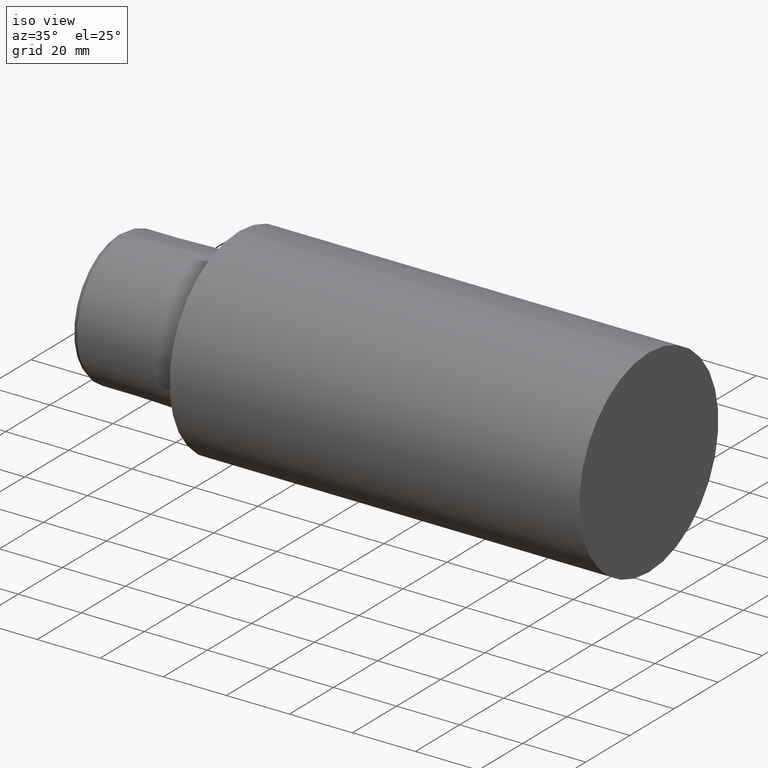
[diagram: clean part render]
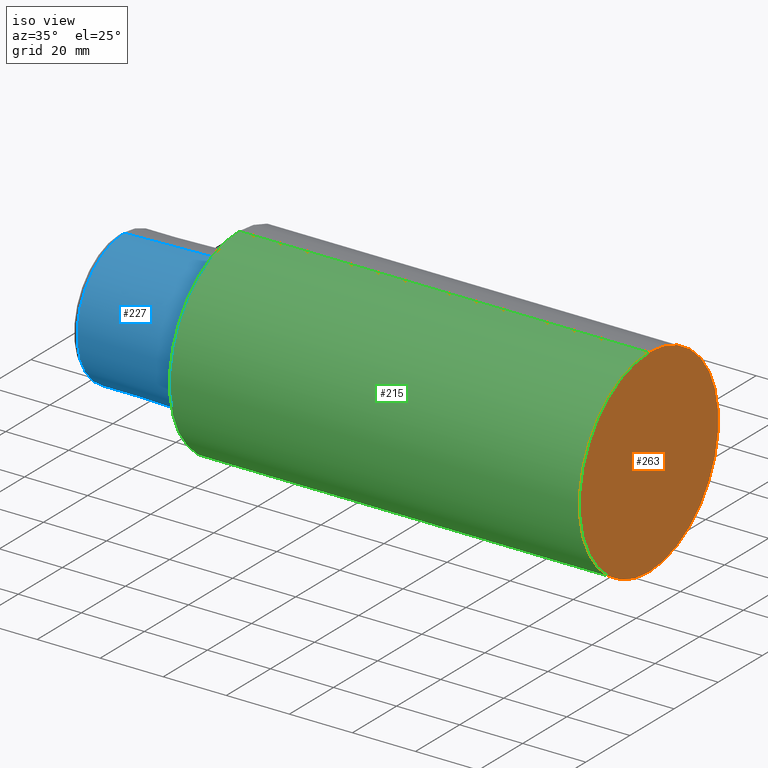
[diagram: same view with three faces highlighted in distinct colors, each labeled with its STEP entity id]
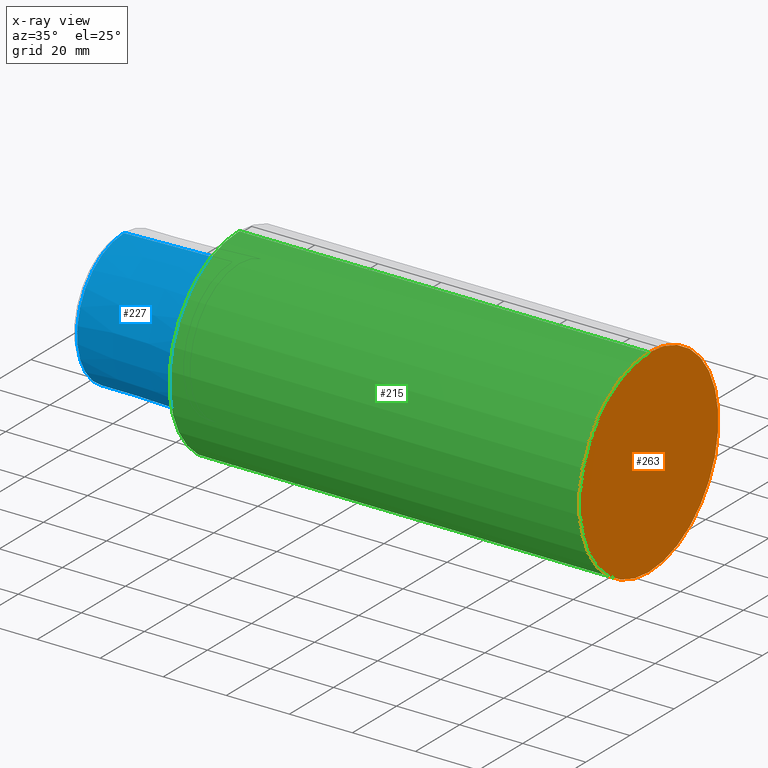
[diagram: x-ray of the same camera — body ghosted, the three highlighted faces saturated]
A machine part, iso view with three faces highlighted in distinct colors.
The next image is the same camera in x-ray (body ghosted, the three faces saturated) — at least one of them is partly hidden behind the body in this view.
Their STEP definitions:

[orange] entity #263 — the highlighted planar face has unit normal (-1, 0, 0).
#5 = DIRECTION ( 'NONE',  ( -1.000000000000000000, 0.000000000000000000, 0.000000000000000000 ) ) ;
#7 = FACE_OUTER_BOUND ( 'NONE', #159, .T. ) ;
#25 = CARTESIAN_POINT ( 'NONE',  ( 129.9999998657614242, 0.000000000000000000, 0.000000000000000000 ) ) ;
#32 = DIRECTION ( 'NONE',  ( -1.000000000000000000, 0.000000000000000000, 0.000000000000000000 ) ) ;
#49 = CIRCLE ( 'NONE', #111, 31.49999997070834823 ) ;
#68 = DIRECTION ( 'NONE',  ( 0.000000000000000000, 0.000000000000000000, 1.000000000000000000 ) ) ;
#75 = ORIENTED_EDGE ( 'NONE', *, *, #151, .F. ) ;
#77 = VERTEX_POINT ( 'NONE', #104 ) ;
#87 = CIRCLE ( 'NONE', #136, 31.49999997070834823 ) ;
#93 = DIRECTION ( 'NONE',  ( 0.000000000000000000, 0.000000000000000000, 1.000000000000000000 ) ) ;
#104 = CARTESIAN_POINT ( 'NONE',  ( 129.9999998657614242, 3.857637413726965239E-15, -31.49999997070834823 ) ) ;
#111 = AXIS2_PLACEMENT_3D ( 'NONE', #315, #32, #93 ) ;
#136 = AXIS2_PLACEMENT_3D ( 'NONE', #25, #327, #220 ) ;
#151 = EDGE_CURVE ( 'NONE', #160, #77, #87, .T. ) ;
#158 = AXIS2_PLACEMENT_3D ( 'NONE', #197, #5, #68 ) ;
#159 = EDGE_LOOP ( 'NONE', ( #75, #212 ) ) ;
#160 = VERTEX_POINT ( 'NONE', #325 ) ;
#197 = CARTESIAN_POINT ( 'NONE',  ( 129.9999998657612252, 0.000000000000000000, 0.000000000000000000 ) ) ;
#212 = ORIENTED_EDGE ( 'NONE', *, *, #309, .F. ) ;
#220 = DIRECTION ( 'NONE',  ( 0.000000000000000000, 0.000000000000000000, 1.000000000000000000 ) ) ;
#263 = ADVANCED_FACE ( 'NONE', ( #7 ), #339, .F. ) ;
#309 = EDGE_CURVE ( 'NONE', #77, #160, #49, .T. ) ;
#315 = CARTESIAN_POINT ( 'NONE',  ( 129.9999998657614242, 0.000000000000000000, 0.000000000000000000 ) ) ;
#325 = CARTESIAN_POINT ( 'NONE',  ( 129.9999998657614242, 0.000000000000000000, 31.49999997070834823 ) ) ;
#327 = DIRECTION ( 'NONE',  ( -1.000000000000000000, 0.000000000000000000, 0.000000000000000000 ) ) ;
#339 = PLANE ( 'NONE',  #158 ) ;

[blue] entity #227 — the highlighted conical surface has half-angle 1.432 deg.
#16 = VERTEX_POINT ( 'NONE', #222 ) ;
#21 = CARTESIAN_POINT ( 'NONE',  ( -2.199999999394708361, 2.702891790757786195E-15, 22.07078639032614120 ) ) ;
#29 = DIRECTION ( 'NONE',  ( 0.000000000000000000, 0.000000000000000000, 1.000000000000000000 ) ) ;
#37 = CARTESIAN_POINT ( 'NONE',  ( -2.199999999394708361, 0.000000000000000000, -22.07078639032614120 ) ) ;
#50 = VERTEX_POINT ( 'NONE', #83 ) ;
#62 = CARTESIAN_POINT ( 'NONE',  ( -2.199999999394708361, 0.000000000000000000, 0.000000000000000000 ) ) ;
#65 = LINE ( 'NONE', #37, #280 ) ;
#70 = EDGE_CURVE ( 'NONE', #208, #16, #218, .T. ) ;
#83 = CARTESIAN_POINT ( 'NONE',  ( -36.49999996440870120, 0.000000000000000000, -21.21334400120073482 ) ) ;
#85 = CARTESIAN_POINT ( 'NONE',  ( -2.199999999394708361, 0.000000000000000000, 0.000000000000000000 ) ) ;
#86 = FACE_OUTER_BOUND ( 'NONE', #348, .T. ) ;
#103 = ORIENTED_EDGE ( 'NONE', *, *, #333, .F. ) ;
#121 = DIRECTION ( 'NONE',  ( 1.000000000000000000, 0.000000000000000000, 0.000000000000000000 ) ) ;
#145 = DIRECTION ( 'NONE',  ( 0.000000000000000000, 0.000000000000000000, 1.000000000000000000 ) ) ;
#163 = DIRECTION ( 'NONE',  ( -1.000000000000000000, 0.000000000000000000, 0.000000000000000000 ) ) ;
#193 = AXIS2_PLACEMENT_3D ( 'NONE', #314, #335, #145 ) ;
#206 = CARTESIAN_POINT ( 'NONE',  ( -2.199999999394708361, 2.702891790757786195E-15, -22.07078639032614120 ) ) ;
#208 = VERTEX_POINT ( 'NONE', #206 ) ;
#218 = CIRCLE ( 'NONE', #264, 22.07078639032614120 ) ;
#219 = CONICAL_SURFACE ( 'NONE', #324, 22.07078639032614120, 0.02499311507610003230 ) ;
#222 = CARTESIAN_POINT ( 'NONE',  ( -2.199999999394708361, 0.000000000000000000, 22.07078639032614120 ) ) ;
#224 = VECTOR ( 'NONE', #296, 1000.000000000000114 ) ;
#227 = ADVANCED_FACE ( 'NONE', ( #86 ), #219, .T. ) ;
#244 = ORIENTED_EDGE ( 'NONE', *, *, #70, .T. ) ;
#253 = VERTEX_POINT ( 'NONE', #332 ) ;
#264 = AXIS2_PLACEMENT_3D ( 'NONE', #85, #163, #29 ) ;
#270 = ORIENTED_EDGE ( 'NONE', *, *, #316, .T. ) ;
#273 = ORIENTED_EDGE ( 'NONE', *, *, #352, .F. ) ;
#280 = VECTOR ( 'NONE', #313, 1000.000000000000114 ) ;
#289 = DIRECTION ( 'NONE',  ( 0.000000000000000000, 0.000000000000000000, -1.000000000000000000 ) ) ;
#296 = DIRECTION ( 'NONE',  ( 0.9996876883571774730, 3.060455192797006293E-18, 0.02499051314164881313 ) ) ;
#299 = LINE ( 'NONE', #21, #224 ) ;
#313 = DIRECTION ( 'NONE',  ( 0.9996876883571774730, 0.000000000000000000, -0.02499051314164881313 ) ) ;
#314 = CARTESIAN_POINT ( 'NONE',  ( -36.49999996440870120, 0.000000000000000000, 0.000000000000000000 ) ) ;
#316 = EDGE_CURVE ( 'NONE', #50, #208, #65, .T. ) ;
#324 = AXIS2_PLACEMENT_3D ( 'NONE', #62, #121, #289 ) ;
#332 = CARTESIAN_POINT ( 'NONE',  ( -36.49999996440870120, 2.650388586893000642E-15, 21.21334400120073482 ) ) ;
#333 = EDGE_CURVE ( 'NONE', #50, #253, #346, .T. ) ;
#335 = DIRECTION ( 'NONE',  ( -1.000000000000000000, 0.000000000000000000, 0.000000000000000000 ) ) ;
#346 = CIRCLE ( 'NONE', #193, 21.21334400120073482 ) ;
#348 = EDGE_LOOP ( 'NONE', ( #273, #103, #270, #244 ) ) ;
#352 = EDGE_CURVE ( 'NONE', #253, #16, #299, .T. ) ;

[green] entity #215 — the highlighted cylindrical surface (partial cylindrical patch) has radius 31.5 mm, axis along (-1, 0, 0).
#1 = CARTESIAN_POINT ( 'NONE',  ( -1.638711037459195739E-09, 3.857637413726965239E-15, -31.49999997070834823 ) ) ;
#14 = AXIS2_PLACEMENT_3D ( 'NONE', #256, #90, #88 ) ;
#18 = VERTEX_POINT ( 'NONE', #55 ) ;
#32 = DIRECTION ( 'NONE',  ( -1.000000000000000000, 0.000000000000000000, 0.000000000000000000 ) ) ;
#43 = EDGE_CURVE ( 'NONE', #77, #72, #53, .T. ) ;
#49 = CIRCLE ( 'NONE', #111, 31.49999997070834823 ) ;
#53 = LINE ( 'NONE', #225, #113 ) ;
#55 = CARTESIAN_POINT ( 'NONE',  ( -1.638711037459195739E-09, 0.000000000000000000, 31.49999997070834823 ) ) ;
#57 = EDGE_CURVE ( 'NONE', #72, #18, #92, .T. ) ;
#72 = VERTEX_POINT ( 'NONE', #1 ) ;
#73 = ORIENTED_EDGE ( 'NONE', *, *, #43, .F. ) ;
#77 = VERTEX_POINT ( 'NONE', #104 ) ;
#88 = DIRECTION ( 'NONE',  ( 0.000000000000000000, 0.000000000000000000, 1.000000000000000000 ) ) ;
#90 = DIRECTION ( 'NONE',  ( -1.000000000000000000, 0.000000000000000000, 0.000000000000000000 ) ) ;
#92 = CIRCLE ( 'NONE', #141, 31.49999997070834823 ) ;
#93 = DIRECTION ( 'NONE',  ( 0.000000000000000000, 0.000000000000000000, 1.000000000000000000 ) ) ;
#104 = CARTESIAN_POINT ( 'NONE',  ( 129.9999998657614242, 3.857637413726965239E-15, -31.49999997070834823 ) ) ;
#111 = AXIS2_PLACEMENT_3D ( 'NONE', #315, #32, #93 ) ;
#113 = VECTOR ( 'NONE', #164, 1000.000000000000000 ) ;
#120 = CARTESIAN_POINT ( 'NONE',  ( -37.99999996124000035, 0.000000000000000000, 31.49999997070834823 ) ) ;
#141 = AXIS2_PLACEMENT_3D ( 'NONE', #194, #281, #310 ) ;
#143 = FACE_OUTER_BOUND ( 'NONE', #300, .T. ) ;
#146 = DIRECTION ( 'NONE',  ( -1.000000000000000000, 0.000000000000000000, 0.000000000000000000 ) ) ;
#148 = VECTOR ( 'NONE', #146, 1000.000000000000000 ) ;
#160 = VERTEX_POINT ( 'NONE', #325 ) ;
#164 = DIRECTION ( 'NONE',  ( -1.000000000000000000, 0.000000000000000000, 0.000000000000000000 ) ) ;
#194 = CARTESIAN_POINT ( 'NONE',  ( -1.638711037459195739E-09, 0.000000000000000000, 0.000000000000000000 ) ) ;
#203 = EDGE_CURVE ( 'NONE', #160, #18, #288, .T. ) ;
#215 = ADVANCED_FACE ( 'NONE', ( #143 ), #259, .T. ) ;
#225 = CARTESIAN_POINT ( 'NONE',  ( -37.99999996124000035, 3.857637413726965239E-15, -31.49999997070834823 ) ) ;
#256 = CARTESIAN_POINT ( 'NONE',  ( -37.99999996124000035, 0.000000000000000000, 0.000000000000000000 ) ) ;
#259 = CYLINDRICAL_SURFACE ( 'NONE', #14, 31.49999997070834823 ) ;
#281 = DIRECTION ( 'NONE',  ( -1.000000000000000000, 0.000000000000000000, 0.000000000000000000 ) ) ;
#288 = LINE ( 'NONE', #120, #148 ) ;
#295 = ORIENTED_EDGE ( 'NONE', *, *, #309, .T. ) ;
#300 = EDGE_LOOP ( 'NONE', ( #73, #295, #303, #345 ) ) ;
#303 = ORIENTED_EDGE ( 'NONE', *, *, #203, .T. ) ;
#309 = EDGE_CURVE ( 'NONE', #77, #160, #49, .T. ) ;
#310 = DIRECTION ( 'NONE',  ( 0.000000000000000000, 0.000000000000000000, 1.000000000000000000 ) ) ;
#315 = CARTESIAN_POINT ( 'NONE',  ( 129.9999998657614242, 0.000000000000000000, 0.000000000000000000 ) ) ;
#325 = CARTESIAN_POINT ( 'NONE',  ( 129.9999998657614242, 0.000000000000000000, 31.49999997070834823 ) ) ;
#345 = ORIENTED_EDGE ( 'NONE', *, *, #57, .F. ) ;